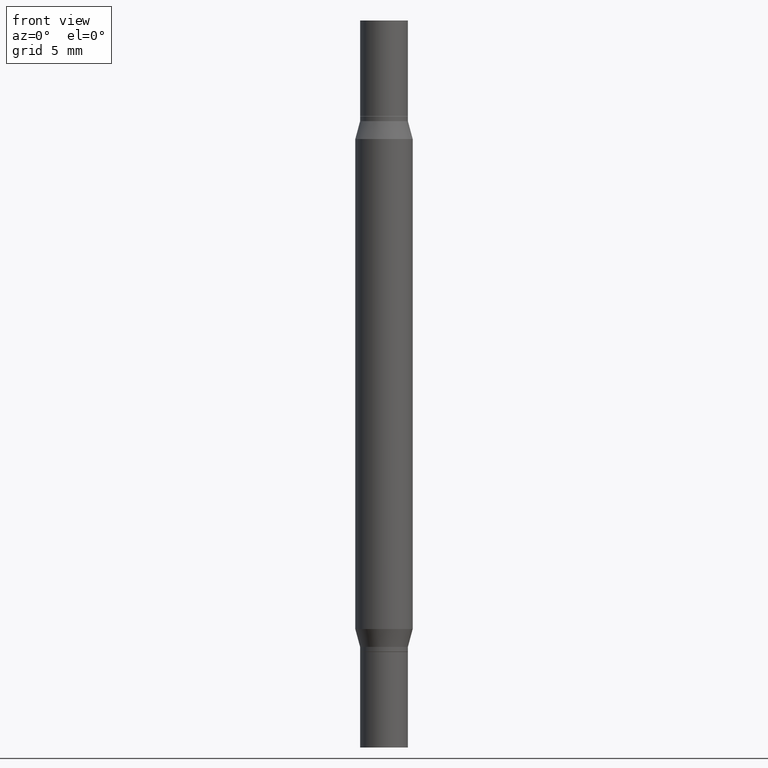
[diagram: clean part render]
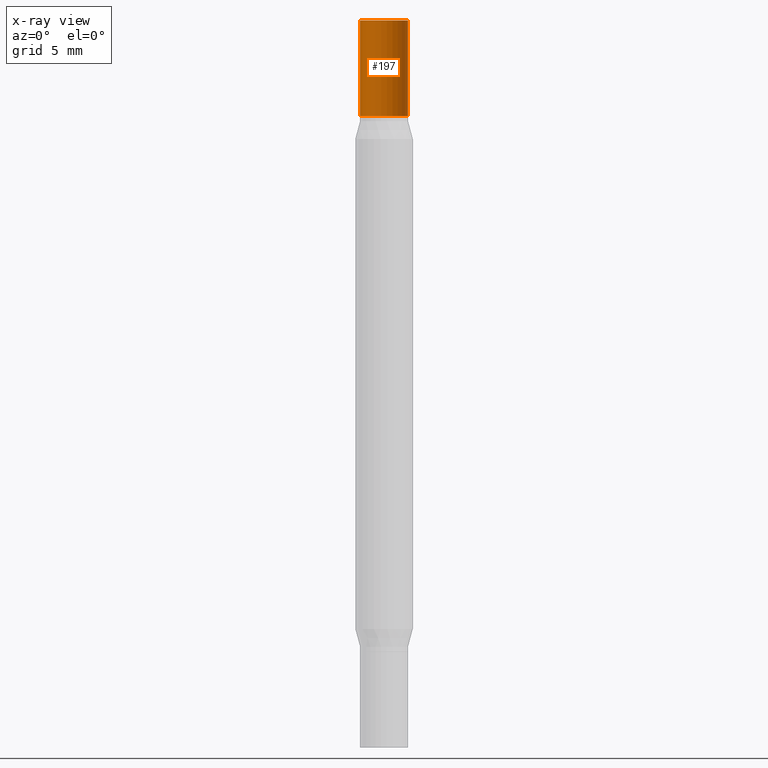
[diagram: x-ray — body ghosted, one internal face saturated and labeled with its STEP entity id]
A machine part, front view, then the same camera in x-ray: the body is ghosted and one INTERNAL B-rep face — a face not visible from any outside direction — is saturated and labeled: STEP entity #197.
In plain terms, the highlighted cylindrical surface (edge-blend (fillet) strip) has radius 1.2497 mm, axis along (-0, -0, -1).
Its self-contained STEP definition (entity closure, byte-faithful):
#14 = CARTESIAN_POINT ( 'NONE',  ( 0.04920000000000000068, -1.030856001175955426E-15, -0.1969000000000000195 ) ) ;
#18 = CARTESIAN_POINT ( 'NONE',  ( 0.04920000000000000068, -3.433195779781105028E-16, 1.112302229232114997E-34 ) ) ;
#31 = CARTESIAN_POINT ( 'NONE',  ( 3.177153072995728757E-29, -6.872942374337910995E-16, -0.1969000000000000195 ) ) ;
#37 = ORIENTED_EDGE ( 'NONE', *, *, #707, .F. ) ;
#143 = DIRECTION ( 'NONE',  ( -2.445468806185136877E-29, -3.491805094961123683E-15, -1.000000000000000000 ) ) ;
#177 = VECTOR ( 'NONE', #143, 39.37007874015748143 ) ;
#182 = VERTEX_POINT ( 'NONE', #270 ) ;
#193 = CARTESIAN_POINT ( 'NONE',  ( -0.04920000000000000068, -4.886310915316924225E-15, -1.496099999999999985 ) ) ;
#197 = ADVANCED_FACE ( 'NONE', ( #900 ), #512, .T. ) ;
#244 = CARTESIAN_POINT ( 'NONE',  ( 3.658665880933582389E-29, 2.421857640538043390E-19, 0.000000000000000000 ) ) ;
#250 = VERTEX_POINT ( 'NONE', #811 ) ;
#264 = VECTOR ( 'NONE', #809, 39.37007874015748143 ) ;
#270 = CARTESIAN_POINT ( 'NONE',  ( -0.04920000000000000068, -5.989524344509276303E-18, 1.224930569750488453E-30 ) ) ;
#306 = EDGE_CURVE ( 'NONE', #415, #182, #766, .T. ) ;
#311 = ORIENTED_EDGE ( 'NONE', *, *, #928, .T. ) ;
#338 = DIRECTION ( 'NONE',  ( 1.000000000000000000, -6.982962677686266711E-15, 0.000000000000000000 ) ) ;
#415 = VERTEX_POINT ( 'NONE', #18 ) ;
#419 = ORIENTED_EDGE ( 'NONE', *, *, #798, .T. ) ;
#444 = AXIS2_PLACEMENT_3D ( 'NONE', #891, #591, #821 ) ;
#456 = CARTESIAN_POINT ( 'NONE',  ( 0.04920000000000000068, -5.567409180549447565E-15, -1.496099999999999985 ) ) ;
#475 = VERTEX_POINT ( 'NONE', #14 ) ;
#500 = LINE ( 'NONE', #193, #264 ) ;
#512 = CYLINDRICAL_SURFACE ( 'NONE', #444, 0.04920000000000000068 ) ;
#560 = EDGE_LOOP ( 'NONE', ( #37, #837, #419, #311 ) ) ;
#590 = LINE ( 'NONE', #456, #177 ) ;
#591 = DIRECTION ( 'NONE',  ( -2.445468806185136597E-29, -3.491805094961124077E-15, -1.000000000000000000 ) ) ;
#687 = DIRECTION ( 'NONE',  ( 2.445468806185136597E-29, 3.491805094961124077E-15, 1.000000000000000000 ) ) ;
#693 = CIRCLE ( 'NONE', #736, 0.04920000000000000068 ) ;
#707 = EDGE_CURVE ( 'NONE', #182, #250, #500, .T. ) ;
#736 = AXIS2_PLACEMENT_3D ( 'NONE', #31, #938, #338 ) ;
#766 = CIRCLE ( 'NONE', #855, 0.04920000000000000068 ) ;
#798 = EDGE_CURVE ( 'NONE', #415, #475, #590, .T. ) ;
#809 = DIRECTION ( 'NONE',  ( -2.445468806185136877E-29, -3.491805094961123683E-15, -1.000000000000000000 ) ) ;
#811 = CARTESIAN_POINT ( 'NONE',  ( -0.04920000000000000068, -5.989524344509276303E-18, -0.1969000000000000195 ) ) ;
#821 = DIRECTION ( 'NONE',  ( 1.000000000000000000, -6.982962677686261977E-15, 0.000000000000000000 ) ) ;
#837 = ORIENTED_EDGE ( 'NONE', *, *, #306, .F. ) ;
#855 = AXIS2_PLACEMENT_3D ( 'NONE', #244, #687, #914 ) ;
#891 = CARTESIAN_POINT ( 'NONE',  ( 0.000000000000000000, -5.223847416807283040E-15, -1.496099999999999985 ) ) ;
#900 = FACE_OUTER_BOUND ( 'NONE', #560, .T. ) ;
#914 = DIRECTION ( 'NONE',  ( 1.000000000000000000, -6.982962677686266711E-15, 2.260776888683160490E-33 ) ) ;
#928 = EDGE_CURVE ( 'NONE', #475, #250, #693, .T. ) ;
#938 = DIRECTION ( 'NONE',  ( 2.445468806185136597E-29, 3.491805094961124077E-15, 1.000000000000000000 ) ) ;